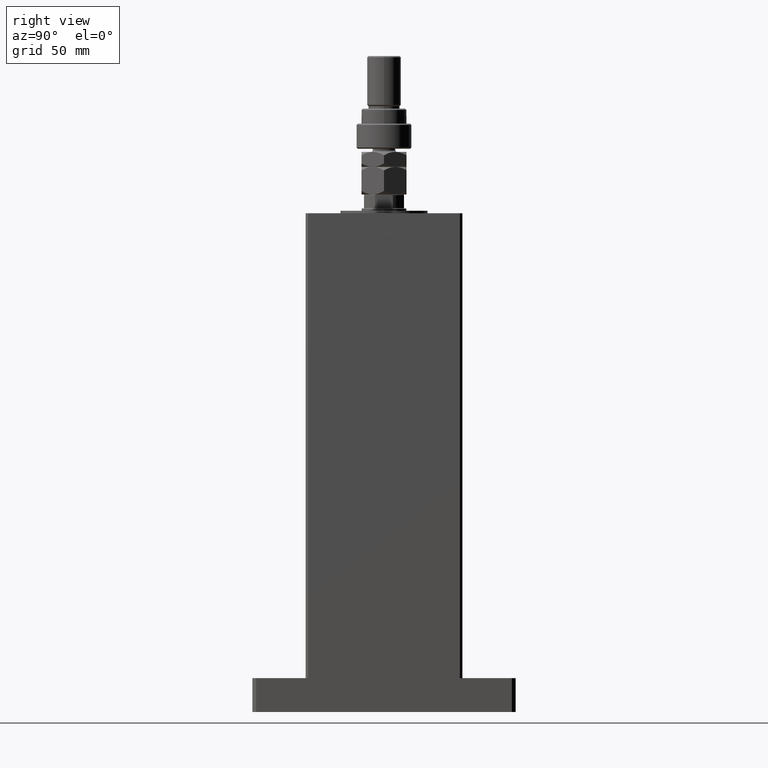
[diagram: clean part render]
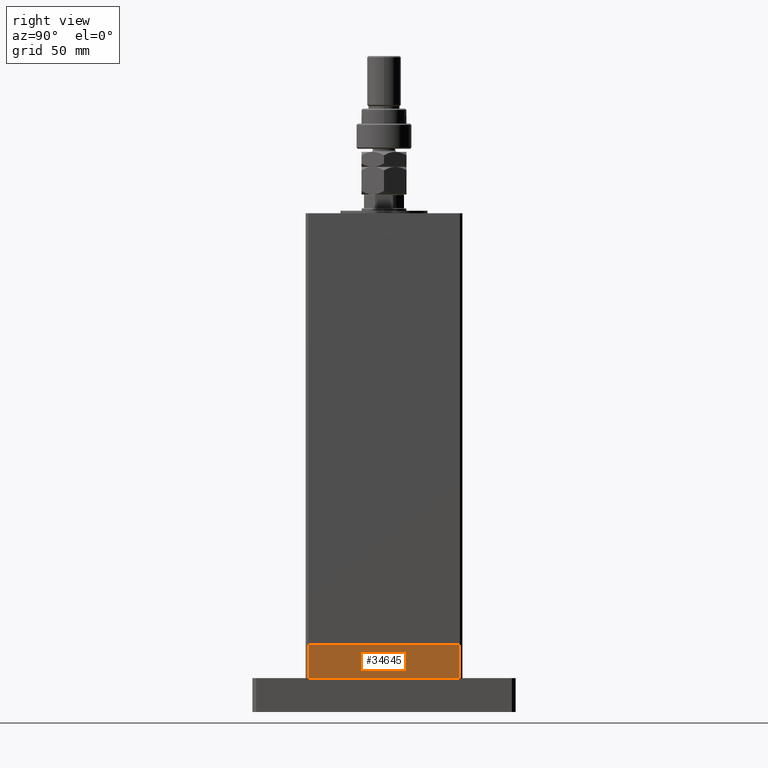
[diagram: same view with one face highlighted and labeled with its STEP entity id]
A machine part, right view. The second image highlights one B-rep face of the part: STEP entity #34645.
In plain terms, the highlighted planar face has unit normal (1, 0, 0).
Its self-contained STEP definition (entity closure, byte-faithful):
#223 = EDGE_CURVE ( 'NONE', #52323, #35811, #34829, .T. ) ;
#2697 = DIRECTION ( 'NONE',  ( 0.000000000000000000, -1.000000000000000000, 0.000000000000000000 ) ) ;
#3880 = VECTOR ( 'NONE', #13081, 1000.000000000000000 ) ;
#6016 = CARTESIAN_POINT ( 'NONE',  ( -75.00000000000001421, 60.49999999999997158, -27.00000000000000000 ) ) ;
#7549 = CARTESIAN_POINT ( 'NONE',  ( -75.00000000000001421, 60.49999999999997158, 0.000000000000000000 ) ) ;
#12171 = CARTESIAN_POINT ( 'NONE',  ( -75.00000000000001421, 60.49999999999997158, 0.000000000000000000 ) ) ;
#12704 = ORIENTED_EDGE ( 'NONE', *, *, #223, .T. ) ;
#13081 = DIRECTION ( 'NONE',  ( 0.000000000000000000, 0.000000000000000000, 1.000000000000000000 ) ) ;
#15235 = AXIS2_PLACEMENT_3D ( 'NONE', #34625, #47770, #39182 ) ;
#15855 = LINE ( 'NONE', #7549, #44553 ) ;
#16003 = CARTESIAN_POINT ( 'NONE',  ( -75.00000000000001421, 60.49999999999997158, -27.00000000000000000 ) ) ;
#19815 = ORIENTED_EDGE ( 'NONE', *, *, #42402, .F. ) ;
#22612 = VECTOR ( 'NONE', #42826, 1000.000000000000000 ) ;
#28031 = VERTEX_POINT ( 'NONE', #12171 ) ;
#29234 = CARTESIAN_POINT ( 'NONE',  ( -75.00000000000001421, -60.50000000000001421, -27.00000000000000000 ) ) ;
#29778 = PLANE ( 'NONE',  #15235 ) ;
#31613 = ORIENTED_EDGE ( 'NONE', *, *, #48101, .T. ) ;
#34375 = ORIENTED_EDGE ( 'NONE', *, *, #42860, .F. ) ;
#34625 = CARTESIAN_POINT ( 'NONE',  ( -75.00000000000001421, 60.49999999999997158, -27.00000000000000000 ) ) ;
#34645 = ADVANCED_FACE ( 'NONE', ( #56374 ), #29778, .T. ) ;
#34829 = LINE ( 'NONE', #47976, #3880 ) ;
#35811 = VERTEX_POINT ( 'NONE', #54617 ) ;
#37257 = EDGE_LOOP ( 'NONE', ( #19815, #34375, #31613, #12704 ) ) ;
#39182 = DIRECTION ( 'NONE',  ( 0.000000000000000000, 0.000000000000000000, 1.000000000000000000 ) ) ;
#42402 = EDGE_CURVE ( 'NONE', #28031, #35811, #15855, .T. ) ;
#42826 = DIRECTION ( 'NONE',  ( 0.000000000000000000, 0.000000000000000000, 1.000000000000000000 ) ) ;
#42860 = EDGE_CURVE ( 'NONE', #43584, #28031, #47118, .T. ) ;
#43584 = VERTEX_POINT ( 'NONE', #6016 ) ;
#44553 = VECTOR ( 'NONE', #2697, 1000.000000000000000 ) ;
#47118 = LINE ( 'NONE', #55432, #22612 ) ;
#47770 = DIRECTION ( 'NONE',  ( -1.000000000000000000, 0.000000000000000000, 0.000000000000000000 ) ) ;
#47976 = CARTESIAN_POINT ( 'NONE',  ( -75.00000000000001421, -60.50000000000001421, -27.00000000000000000 ) ) ;
#48101 = EDGE_CURVE ( 'NONE', #43584, #52323, #50628, .T. ) ;
#50628 = LINE ( 'NONE', #16003, #55701 ) ;
#52323 = VERTEX_POINT ( 'NONE', #29234 ) ;
#54617 = CARTESIAN_POINT ( 'NONE',  ( -75.00000000000001421, -60.50000000000001421, 0.000000000000000000 ) ) ;
#55432 = CARTESIAN_POINT ( 'NONE',  ( -75.00000000000001421, 60.49999999999997158, -27.00000000000000000 ) ) ;
#55701 = VECTOR ( 'NONE', #55779, 1000.000000000000000 ) ;
#55779 = DIRECTION ( 'NONE',  ( 0.000000000000000000, -1.000000000000000000, 0.000000000000000000 ) ) ;
#56374 = FACE_OUTER_BOUND ( 'NONE', #37257, .T. ) ;